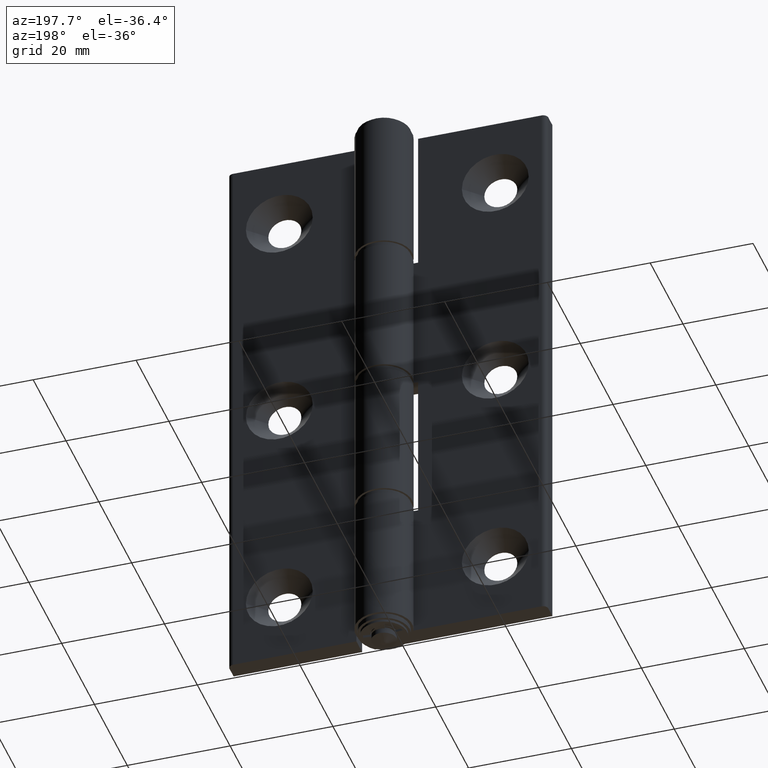
[diagram: clean part render]
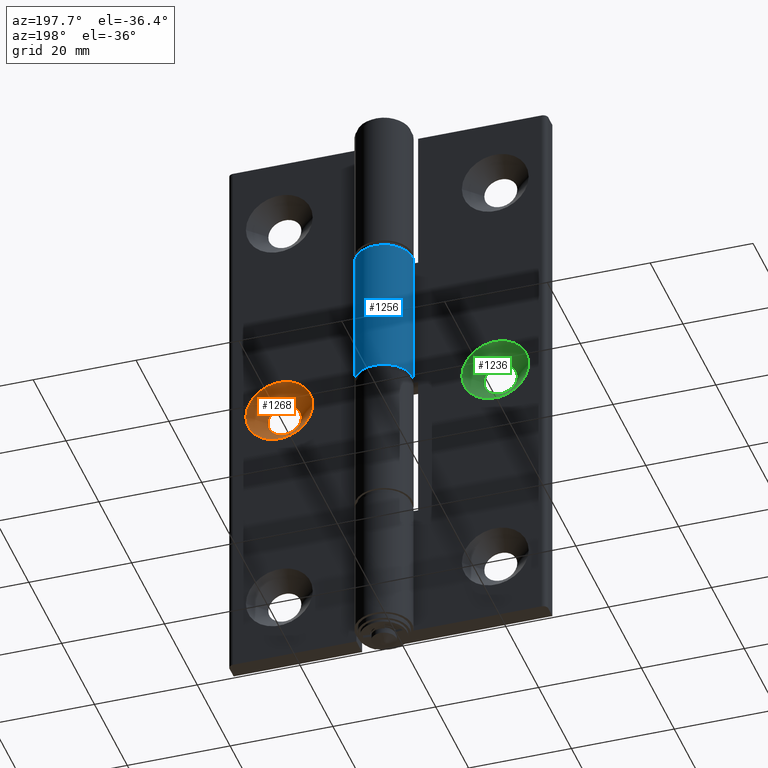
[diagram: same view with three faces highlighted in distinct colors, each labeled with its STEP entity id]
A machine part, auxiliary view with three faces highlighted in distinct colors.
Their STEP definitions:

[orange] entity #1268 — the highlighted conical surface has half-angle 45 deg.
#333=FACE_BOUND('',#500,.T.);
#393=FACE_OUTER_BOUND('',#499,.T.);
#499=EDGE_LOOP('',(#1032));
#500=EDGE_LOOP('',(#1033));
#603=CIRCLE('',#1386,6.5);
#604=CIRCLE('',#1387,3.25);
#693=VERTEX_POINT('',#2048);
#694=VERTEX_POINT('',#2050);
#822=EDGE_CURVE('',#693,#693,#603,.T.);
#823=EDGE_CURVE('',#694,#694,#604,.T.);
#1032=ORIENTED_EDGE('',*,*,#822,.F.);
#1033=ORIENTED_EDGE('',*,*,#823,.F.);
#1233=CONICAL_SURFACE('',#1385,4.875,45.);
#1268=ADVANCED_FACE('',(#393,#333),#1233,.F.);
#1385=AXIS2_PLACEMENT_3D('',#2047,#1646,#1647);
#1386=AXIS2_PLACEMENT_3D('',#2049,#1648,#1649);
#1387=AXIS2_PLACEMENT_3D('',#2051,#1650,#1651);
#1646=DIRECTION('center_axis',(-1.07440937866951E-16,1.,0.));
#1647=DIRECTION('ref_axis',(1.,1.07440937866951E-16,0.));
#1648=DIRECTION('center_axis',(1.07440937866951E-16,-1.,0.));
#1649=DIRECTION('ref_axis',(1.,1.07440937866951E-16,0.));
#1650=DIRECTION('center_axis',(-1.07440937866951E-16,1.,0.));
#1651=DIRECTION('ref_axis',(1.,1.07440937866951E-16,0.));
#2047=CARTESIAN_POINT('Origin',(21.,1.875,-56.5));
#2048=CARTESIAN_POINT('',(27.5,3.5,-56.5));
#2049=CARTESIAN_POINT('Origin',(21.,3.5,-56.5));
#2050=CARTESIAN_POINT('',(24.25,0.25,-56.5));
#2051=CARTESIAN_POINT('Origin',(21.,0.249999999999989,-56.5));

[blue] entity #1256 — the highlighted cylindrical surface (edge-blend (fillet) strip) has radius 5.5 mm, axis along (0, 0, -1).
#94=LINE('',#1990,#174);
#100=LINE('',#2010,#180);
#174=VECTOR('',#1570,27.5);
#180=VECTOR('',#1594,27.5);
#279=CYLINDRICAL_SURFACE('',#1361,5.5);
#381=FACE_OUTER_BOUND('',#478,.T.);
#478=EDGE_LOOP('',(#1008,#1009,#1010,#1011));
#585=CIRCLE('',#1342,5.5);
#587=CIRCLE('',#1345,5.5);
#664=VERTEX_POINT('',#1954);
#665=VERTEX_POINT('',#1956);
#668=VERTEX_POINT('',#1963);
#670=VERTEX_POINT('',#1967);
#784=EDGE_CURVE('',#665,#664,#585,.T.);
#790=EDGE_CURVE('',#668,#670,#587,.T.);
#801=EDGE_CURVE('',#664,#668,#94,.T.);
#810=EDGE_CURVE('',#670,#665,#100,.T.);
#1008=ORIENTED_EDGE('',*,*,#784,.T.);
#1009=ORIENTED_EDGE('',*,*,#801,.T.);
#1010=ORIENTED_EDGE('',*,*,#790,.T.);
#1011=ORIENTED_EDGE('',*,*,#810,.T.);
#1256=ADVANCED_FACE('',(#381),#279,.T.);
#1342=AXIS2_PLACEMENT_3D('',#1957,#1540,#1541);
#1345=AXIS2_PLACEMENT_3D('',#1969,#1550,#1551);
#1361=AXIS2_PLACEMENT_3D('',#2013,#1598,#1599);
#1540=DIRECTION('center_axis',(0.,0.,1.));
#1541=DIRECTION('ref_axis',(-1.,0.,0.));
#1550=DIRECTION('center_axis',(0.,0.,-1.));
#1551=DIRECTION('ref_axis',(-1.,0.,0.));
#1570=DIRECTION('',(0.,0.,1.));
#1594=DIRECTION('',(0.,0.,-1.));
#1598=DIRECTION('center_axis',(0.,0.,-1.));
#1599=DIRECTION('ref_axis',(-1.,0.,0.));
#1954=CARTESIAN_POINT('',(-5.1234753829798,3.5,-56.));
#1956=CARTESIAN_POINT('',(-3.08148791101958E-32,0.,-56.));
#1957=CARTESIAN_POINT('Origin',(0.,5.5,-56.));
#1963=CARTESIAN_POINT('',(-5.1234753829798,3.5,-28.5));
#1967=CARTESIAN_POINT('',(-3.08148791101958E-32,0.,-28.5));
#1969=CARTESIAN_POINT('Origin',(0.,5.5,-28.5));
#1990=CARTESIAN_POINT('',(-5.1234753829798,3.5,0.));
#2010=CARTESIAN_POINT('',(-3.08148791101958E-32,0.,0.));
#2013=CARTESIAN_POINT('Origin',(0.,5.5,0.));

[green] entity #1236 — the highlighted conical surface has half-angle 45 deg.
#306=FACE_BOUND('',#441,.T.);
#361=FACE_OUTER_BOUND('',#440,.T.);
#440=EDGE_LOOP('',(#920));
#441=EDGE_LOOP('',(#921));
#574=CIRCLE('',#1323,6.5);
#575=CIRCLE('',#1324,3.25);
#648=VERTEX_POINT('',#1913);
#649=VERTEX_POINT('',#1915);
#766=EDGE_CURVE('',#648,#648,#574,.T.);
#767=EDGE_CURVE('',#649,#649,#575,.T.);
#920=ORIENTED_EDGE('',*,*,#766,.F.);
#921=ORIENTED_EDGE('',*,*,#767,.F.);
#1228=CONICAL_SURFACE('',#1322,4.875,45.);
#1236=ADVANCED_FACE('',(#361,#306),#1228,.F.);
#1322=AXIS2_PLACEMENT_3D('',#1912,#1493,#1494);
#1323=AXIS2_PLACEMENT_3D('',#1914,#1495,#1496);
#1324=AXIS2_PLACEMENT_3D('',#1916,#1497,#1498);
#1493=DIRECTION('center_axis',(-2.50695521689551E-16,1.,0.));
#1494=DIRECTION('ref_axis',(1.,2.50695521689551E-16,-7.14069536138054E-16));
#1495=DIRECTION('center_axis',(2.50695521689551E-16,-1.,0.));
#1496=DIRECTION('ref_axis',(1.,2.50695521689551E-16,-7.14069536138054E-16));
#1497=DIRECTION('center_axis',(-2.50695521689551E-16,1.,0.));
#1498=DIRECTION('ref_axis',(1.,2.50695521689551E-16,-7.14069536138054E-16));
#1912=CARTESIAN_POINT('Origin',(-21.,1.875,-56.5));
#1913=CARTESIAN_POINT('',(-14.5,3.5,-56.5));
#1914=CARTESIAN_POINT('Origin',(-21.,3.5,-56.5));
#1915=CARTESIAN_POINT('',(-17.75,0.249999999999996,-56.5));
#1916=CARTESIAN_POINT('Origin',(-21.,0.250000000000004,-56.5));